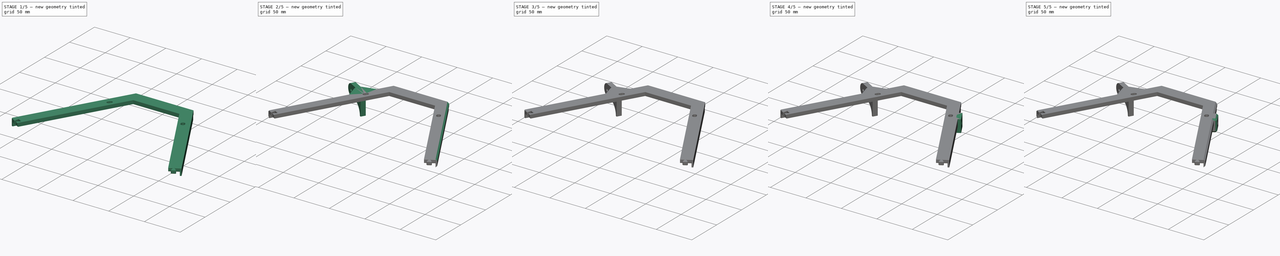
[diagram: build sequence overview — one tinted view per stage of 5, left to right]
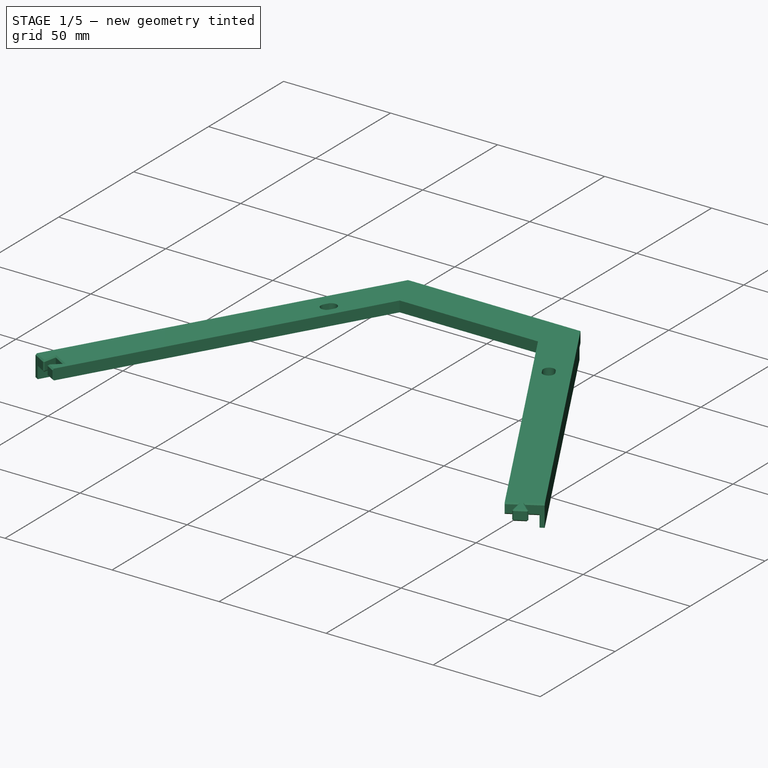
[diagram: stage 1 of 5 — iso view after this stage's code; geometry added in this stage tinted green]
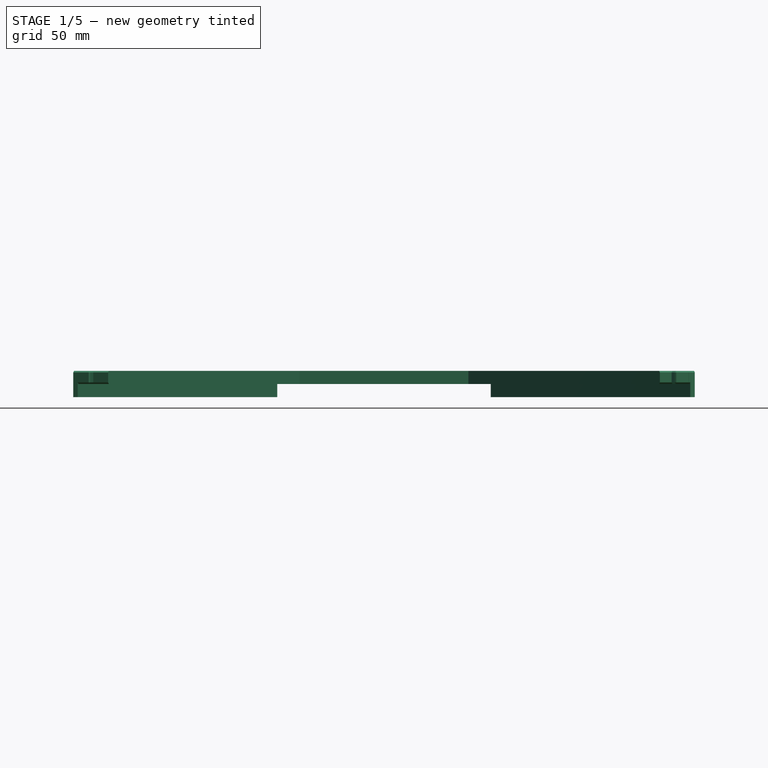
[diagram: stage 1 of 5 — front view after this stage's code; geometry added in this stage tinted green]
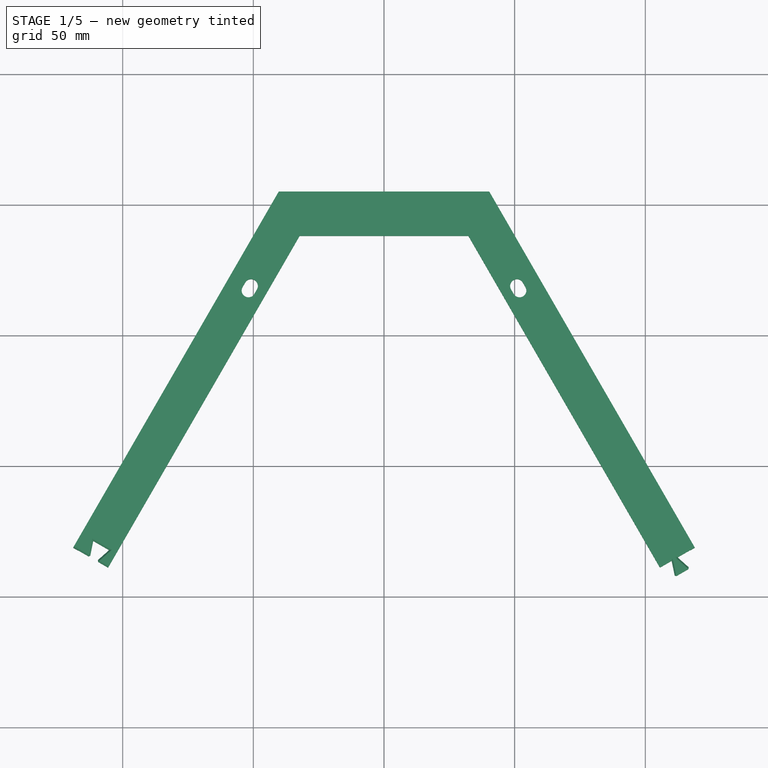
[diagram: stage 1 of 5 — top view after this stage's code; geometry added in this stage tinted green]
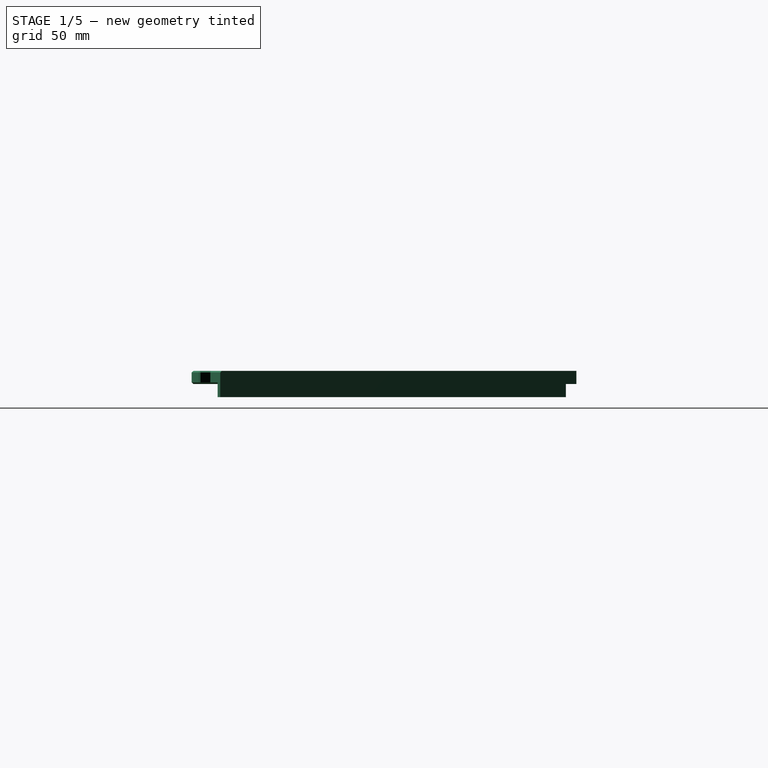
[diagram: stage 1 of 5 — right view after this stage's code; geometry added in this stage tinted green]
FCSTD DOCUMENT  (FreeCAD 0.19R24366 (Git))
Label: TopCover2
License: All rights reserved
LicenseURL: http://en.wikipedia.org/wiki/All_rights_reserved
objects: Sketcher::SketchObject×8, PartDesign::Body×7, PartDesign::Chamfer×5, PartDesign::FeatureBase×5, PartDesign::Pad×4, PartDesign::ShapeBinder×3, PartDesign::Pocket×3, PartDesign::Plane×2, App::Part×2, PartDesign::Fillet×1
note: 51 computed .brp shape members not serialized (recipe doc carries the construction recipe); baked Part::Feature solids carry a one-line shape summary decoded from their .brp

FEATURE [Sketcher::SketchObject] Sketch  label="SR_TopTemplate"
  FullyConstrained = true
  MapMode = 5
  Support = -> [XY_Plane001]
  sketch-geometry (47):
    g0: LineSegment StartX=-233.799 StartY=-134.984 StartZ=0 EndX=0 EndY=269.968 EndZ=0
    g1: LineSegment StartX=0 StartY=269.968 StartZ=0 EndX=233.799 EndY=-134.984 EndZ=0
    g2: LineSegment StartX=233.799 StartY=-134.984 StartZ=0 EndX=-233.799 EndY=-134.984 EndZ=0
    g3: LineSegment StartX=-196.299 StartY=-70.0321 StartZ=0 EndX=-158.799 EndY=-134.984 EndZ=0
    g4: LineSegment StartX=158.799 StartY=-134.984 StartZ=0 EndX=196.299 EndY=-70.0321 EndZ=0
    g5: LineSegment StartX=-37.5 StartY=205.016 StartZ=0 EndX=37.5 EndY=205.016 EndZ=0
    g6: LineSegment StartX=-233.799 StartY=-134.984 StartZ=0 EndX=116.9 EndY=67.492 EndZ=0
    g7: LineSegment StartX=0 StartY=269.968 StartZ=0 EndX=0 EndY=-134.984 EndZ=0
    g8: LineSegment StartX=233.799 StartY=-134.984 StartZ=0 EndX=-116.9 EndY=67.492 EndZ=0
    g9: GeomPoint X=0 Y=205.016 Z=0
    g10: LineSegment StartX=0 StartY=243.968 StartZ=0 EndX=-211.282 EndY=-121.984 EndZ=0
    g11: LineSegment StartX=-211.282 StartY=-121.984 StartZ=0 EndX=211.282 EndY=-121.984 EndZ=0
    g12: LineSegment StartX=211.282 StartY=-121.984 StartZ=0 EndX=0 EndY=243.968 EndZ=0
    g13: LineSegment StartX=-211.282 StartY=-121.984 StartZ=0 EndX=-222.541 EndY=-115.484 EndZ=0
    g14: LineSegment StartX=0 StartY=256.968 StartZ=0 EndX=-222.541 EndY=-128.484 EndZ=0
    g15: LineSegment StartX=-222.541 StartY=-128.484 StartZ=0 EndX=222.541 EndY=-128.484 EndZ=0
    g16: LineSegment StartX=222.541 StartY=-128.484 StartZ=0 EndX=0 EndY=256.968 EndZ=0
    g17: GeomPoint X=0 Y=0 Z=0
    g18: LineSegment StartX=-116.85 StartY=67.5786 StartZ=0 EndX=-105.591 EndY=61.0786 EndZ=0
    g19: LineSegment StartX=105.591 StartY=61.0786 StartZ=0 EndX=116.85 EndY=67.5786 EndZ=0
    g20: LineSegment StartX=-40.5 StartY=199.82 StartZ=0 EndX=-40.8464 EndY=200.02 EndZ=0
    g21: LineSegment StartX=-40.8464 StartY=200.02 StartZ=0 EndX=-193.646 EndY=-64.6359 EndZ=0
    g22: LineSegment StartX=-193.646 StartY=-64.6359 StartZ=0 EndX=-193.299 EndY=-64.8359 EndZ=0
    g23: LineSegment StartX=40.5 StartY=199.82 StartZ=0 EndX=40.8464 EndY=200.02 EndZ=0
    g24: LineSegment StartX=40.8464 StartY=200.02 StartZ=0 EndX=193.646 EndY=-64.6359 EndZ=0
    g25: LineSegment StartX=193.646 StartY=-64.6359 StartZ=0 EndX=193.299 EndY=-64.8359 EndZ=0
    g26: LineSegment StartX=-40.8464 StartY=200.02 StartZ=0 EndX=-42.5785 EndY=201.02 EndZ=0
    g27: LineSegment StartX=-42.5785 StartY=201.02 StartZ=0 EndX=-195.378 EndY=-63.6359 EndZ=0
    g28: LineSegment StartX=-195.378 StartY=-63.6359 StartZ=0 EndX=-193.646 EndY=-64.6359 EndZ=0
    g29: LineSegment StartX=40.8464 StartY=200.02 StartZ=0 EndX=42.5785 EndY=201.02 EndZ=0
    g30: LineSegment StartX=42.5785 StartY=201.02 StartZ=0 EndX=195.378 EndY=-63.6359 EndZ=0
    g31: LineSegment StartX=195.378 StartY=-63.6359 StartZ=0 EndX=193.646 EndY=-64.6359 EndZ=0
    g32: LineSegment StartX=-42.5785 StartY=201.02 StartZ=0 EndX=-40.2713 EndY=205.016 EndZ=0
    g33: LineSegment StartX=-40.2713 StartY=205.016 StartZ=0 EndX=-37.5 EndY=205.016 EndZ=0
    g34: LineSegment StartX=37.5 StartY=205.016 StartZ=0 EndX=40.2713 EndY=205.016 EndZ=0
    g35: LineSegment StartX=40.2713 StartY=205.016 StartZ=0 EndX=42.5785 EndY=201.02 EndZ=0
    g36: Circle CenterX=-171.17 CenterY=-39.5071 CenterZ=0 NormalX=0 NormalY=0 NormalZ=1 AngleXU=0 Radius=2.6
    g37: Circle CenterX=-51.3708 CenterY=167.991 CenterZ=0 NormalX=0 NormalY=0 NormalZ=1 AngleXU=0 Radius=2.6
    g38: Circle CenterX=51.3708 CenterY=167.991 CenterZ=0 NormalX=0 NormalY=0 NormalZ=1 AngleXU=0 Radius=2.6
    g39: Circle CenterX=171.17 CenterY=-39.5071 CenterZ=0 NormalX=0 NormalY=0 NormalZ=1 AngleXU=0 Radius=2.6
    g40: Circle CenterX=119.799 CenterY=-128.484 CenterZ=0 NormalX=0 NormalY=0 NormalZ=1 AngleXU=0 Radius=2.6
    g41: Circle CenterX=-119.799 CenterY=-128.484 CenterZ=0 NormalX=0 NormalY=0 NormalZ=1 AngleXU=0 Radius=2.6
    g42: LineSegment StartX=-51.3708 StartY=167.991 StartZ=0 EndX=-57 EndY=171.241 EndZ=0
    g43: LineSegment StartX=-39.8094 StartY=201.016 StartZ=0 EndX=39.8094 EndY=201.016 EndZ=0
    g44: LineSegment StartX=47.315 StartY=188.016 StartZ=0 EndX=-47.315 EndY=188.016 EndZ=0
    g45: LineSegment StartX=37.5 StartY=205.016 StartZ=0 EndX=37.5 EndY=201.016 EndZ=0
    g46: LineSegment StartX=39.8094 StartY=201.016 StartZ=0 EndX=39.8094 EndY=188.016 EndZ=0
  constraints (135):
    c: Coincident(g0,g1)
    c: Coincident(g1,g2)
    c: Coincident(g2,g0)
    c: Equal(g0,g1)
    c: Equal(g1,g2)
    c: PointOnObject(g3,g0)
    c: PointOnObject(g4,g2)
    c: PointOnObject(g4,g1)
    c: PointOnObject(g5,g0)
    c: PointOnObject(g5,g1)
    c: Parallel(g5,g2)
    c: Parallel(g4,g0)
    c: Equal(g3,g4)
    c: Equal(g4,g5)
    c: PointOnObject(g3,g2)
    c: Parallel(g3,g1)
    c: Distance(g3) = 75
    c: Coincident(g6,g0)
    c: PointOnObject(g6,g1)
    c: Coincident(g7,g0)
    c: PointOnObject(g7,g2)
    c: Coincident(g8,g1)
    c: PointOnObject(g8,g0)
    c: Perpendicular(g0,g8)
    c: Perpendicular(g2,g7)
    c: Perpendicular(g1,g6)
    c: PointOnObject(g9,g5)
    c: PointOnObject(g9,g7)
    c: Distance(g9,g7) = 340
    c: PointOnObject(g10,g7)
    c: PointOnObject(g10,g6)
    c: Coincident(g10,g11)
    c: PointOnObject(g11,g8)
    c: Coincident(g11,g12)
    c: Coincident(g12,g10)
    c: Equal(g10,g12)
    c: Equal(g12,g11)
    c: Coincident(g13,g10)
    c: PointOnObject(g13,g0)
    c: Perpendicular(g0,g13)
    c: Distance(g13) = 13
    c: PointOnObject(g14,g6)
    c: Coincident(g14,g15)
    c: PointOnObject(g15,g8)
    c: Coincident(g15,g16)
    c: Coincident(g16,g14)
    c: Symmetric(g10,g0,g14)
    c: Equal(g14,g16)
    c: Equal(g16,g15)
    c: PointOnObject(g17,g8)
    c: PointOnObject(g17,g7)
    c: PointOnObject(g18,g0)
    c: PointOnObject(g18,g10)
    c: PointOnObject(g19,g1)
    c: Symmetric(g19,g18,g7)
    c: Parallel(g18,g8)
    c: PointOnObject(g20,g0)
    c: Coincident(g20,g21)
    c: Coincident(g21,g22)
    c: Perpendicular(g0,g22)
    c: Equal(g22,g20)
    c: Perpendicular(g0,g20)
    c: Distance(g20,g5) = 6
    c: Coincident(g23,g24)
    c: Coincident(g24,g25)
    c: PointOnObject(g25,g1)
    c: Perpendicular(g1,g25)
    c: Equal(g25,g23)
    c: Equal(g23,g20)
    c: Perpendicular(g1,g23)
    c: Coincident(g20,g26)
    c: Coincident(g26,g27)
    c: Coincident(g27,g28)
    c: Coincident(g28,g21)
    c: Perpendicular(g0,g28)
    c: Equal(g28,g26)
    c: Perpendicular(g0,g26)
    c: Coincident(g23,g29)
    c: Coincident(g29,g30)
    c: Coincident(g30,g31)
    c: Coincident(g31,g24)
    c: Perpendicular(g1,g31)
    c: Equal(g31,g29)
    c: Equal(g29,g26)
    c: Perpendicular(g1,g29)
    c: Symmetric(g20,g23,g7)
    c: Equal(g24,g21)
    c: Distance(g20,g20) = 0.4
    c: Distance(g26) = 2
    c: Symmetric(g22,g20,g8)
    c: Parallel(g19,g6)
    c: Coincident(g26,g32)
    c: Coincident(g32,g33)
    c: Coincident(g33,g5)
    c: PointOnObject(g32,g5)
    c: PointOnObject(g32,g27)
    c: Coincident(g34,g5)
    c: Coincident(g35,g34)
    c: Coincident(g35,g29)
    c: PointOnObject(g34,g30)
    c: PointOnObject(g34,g5)
    c: PointOnObject(g36,g14)
    c: Equal(g36,g37)
    c: Equal(g37,g38)
    c: Equal(g38,g39)
    c: Equal(g39,g40)
    c: Equal(g40,g41)
    c: Symmetric(g37,g36,g8)
    c: Symmetric(g36,g41,g6)
    c: Symmetric(g41,g40,g7)
    c: Symmetric(g40,g39,g8)
    c: Symmetric(g39,g38,g6)
    c: Coincident(g42,g37)
    c: PointOnObject(g42,g0)
    c: Perpendicular(g0,g42)
    c: Distance(g42,g5) = 39
    c: Radius(g37) = 2.6
    c: PointOnObject(g43,g0)
    c: PointOnObject(g43,g1)
    c: PointOnObject(g44,g1)
    c: PointOnObject(g44,g0)
    c: Parallel(g44,g43)
    c: Parallel(g43,g5)
    c: Coincident(g45,g5)
    c: PointOnObject(g45,g43)
    c: Coincident(g46,g43)
    c: PointOnObject(g46,g44)
    c: Equal(g46,g13)
    c: Perpendicular(g44,g46)
    c: Perpendicular(g43,g45)
    c: Distance(g45) = 4
    c: Coincident(g17,g-1)  '__ANCHOR1_'
    c: Horizontal(g2)  '__ANCHOR2__'
    c: Distance(g8,g18) = 0.1
    c: Distance(g8,g42) = 119.799  'ScrewFromMiddle'
FEATURE [PartDesign::Body] Body  label="SR_TopTemplate_"
  Group = -> [Sketch]
  Origin = -> Origin001
FEATURE [PartDesign::ShapeBinder] ShapeBinder
  Support = -> [Sketch]
  TraceSupport = false
FEATURE [Sketcher::SketchObject] Sketch001  label="SRTF_Base"
  ExternalGeometry = -> [ShapeBinder]
  FullyConstrained = true
  MapMode = 5
  Support = -> [XY_Plane002]
  sketch-geometry (40):
    g0: LineSegment StartX=-40.2713 StartY=205.016 StartZ=0 EndX=40.2713 EndY=205.016 EndZ=0
    g1: LineSegment StartX=40.2713 StartY=205.016 StartZ=0 EndX=118.928 EndY=68.7786 EndZ=0
    g2: LineSegment StartX=105.591 StartY=61.0786 StartZ=0 EndX=32.3038 EndY=188.016 EndZ=0
    g3: LineSegment StartX=32.3038 StartY=188.016 StartZ=0 EndX=-32.3038 EndY=188.016 EndZ=0
    g4: LineSegment StartX=-32.3038 StartY=188.016 StartZ=0 EndX=-105.591 EndY=61.0786 EndZ=0
    g5: LineSegment StartX=-118.928 StartY=68.7786 StartZ=0 EndX=-40.2713 EndY=205.016 EndZ=0
    g6: LineSegment StartX=-118.928 StartY=68.7786 StartZ=0 EndX=-116.85 EndY=67.5786 EndZ=0
    g7: LineSegment StartX=-116.85 StartY=67.5786 StartZ=0 EndX=-112.519 EndY=65.0786 EndZ=0
    g8: LineSegment StartX=-112.519 StartY=65.0786 StartZ=0 EndX=-109.921 EndY=63.5786 EndZ=0
    g9: LineSegment StartX=-109.921 StartY=63.5786 StartZ=0 EndX=-105.591 EndY=61.0786 EndZ=0
    g10: LineSegment StartX=-112.519 StartY=65.0786 StartZ=0 EndX=-111.251 EndY=71.2747 EndZ=0
    g11: LineSegment StartX=-111.251 StartY=71.2747 StartZ=0 EndX=-105.189 EndY=67.7747 EndZ=0
    g12: LineSegment StartX=-105.189 StartY=67.7747 StartZ=0 EndX=-109.921 EndY=63.5786 EndZ=0
    g13: LineSegment StartX=-111.251 StartY=71.2747 StartZ=0 EndX=-115.928 EndY=73.9747 EndZ=0
    g14: LineSegment StartX=118.928 StartY=68.7786 StartZ=0 EndX=116.85 EndY=67.5786 EndZ=0
    g15: LineSegment StartX=116.85 StartY=67.5786 StartZ=0 EndX=112.519 EndY=65.0786 EndZ=0
    g16: LineSegment StartX=112.519 StartY=65.0786 StartZ=0 EndX=109.921 EndY=63.5786 EndZ=0
    g17: LineSegment StartX=109.921 StartY=63.5786 StartZ=0 EndX=105.591 EndY=61.0786 EndZ=0
    g18: LineSegment StartX=109.921 StartY=63.5786 StartZ=0 EndX=109.971 EndY=63.492 EndZ=0
    g19: LineSegment StartX=109.971 StartY=63.492 StartZ=0 EndX=111.239 EndY=57.2958 EndZ=0
    g20: LineSegment StartX=111.239 StartY=57.2958 StartZ=0 EndX=117.301 EndY=60.7958 EndZ=0
    g21: LineSegment StartX=117.301 StartY=60.7958 StartZ=0 EndX=112.569 EndY=64.992 EndZ=0
    g22: LineSegment StartX=112.569 StartY=64.992 StartZ=0 EndX=112.519 EndY=65.0786 EndZ=0
    g23: LineSegment StartX=109.921 StartY=63.5786 StartZ=0 EndX=110.051 EndY=63.6536 EndZ=0
    g24: LineSegment StartX=110.051 StartY=63.6536 StartZ=0 EndX=110.101 EndY=63.567 EndZ=0
    g25: LineSegment StartX=110.101 StartY=63.567 StartZ=0 EndX=111.337 EndY=57.5282 EndZ=0
    g26: LineSegment StartX=111.337 StartY=57.5282 StartZ=0 EndX=117.046 EndY=60.8217 EndZ=0
    g27: LineSegment StartX=117.046 StartY=60.8217 StartZ=0 EndX=112.44 EndY=64.917 EndZ=0
    g28: LineSegment StartX=112.44 StartY=64.917 StartZ=0 EndX=112.39 EndY=65.0036 EndZ=0
    g29: LineSegment StartX=112.39 StartY=65.0036 StartZ=0 EndX=112.519 EndY=65.0786 EndZ=0
    g30: LineSegment StartX=117.121 StartY=60.6918 StartZ=0 EndX=117.046 EndY=60.8217 EndZ=0
    g31: LineSegment StartX=117.046 StartY=60.8217 StartZ=0 EndX=117.146 EndY=60.9339 EndZ=0
    g32: ArcOfCircle CenterX=-51.8708 CenterY=167.125 CenterZ=0 NormalX=0 NormalY=0 NormalZ=1 AngleXU=0 Radius=2.6 StartAngle=2.61799 EndAngle=5.75959
    g33: ArcOfCircle CenterX=-50.8708 CenterY=168.857 CenterZ=0 NormalX=0 NormalY=0 NormalZ=1 AngleXU=0 Radius=2.6 StartAngle=5.75959 EndAngle=8.90118
    g34: LineSegment StartX=-49.6192 StartY=165.825 StartZ=0 EndX=-48.6192 EndY=167.557 EndZ=0
    g35: LineSegment StartX=-54.1225 StartY=168.425 StartZ=0 EndX=-53.1225 EndY=170.157 EndZ=0
    g36: ArcOfCircle CenterX=50.8708 CenterY=168.857 CenterZ=0 NormalX=0 NormalY=0 NormalZ=1 AngleXU=0 Radius=2.6 StartAngle=0.523599 EndAngle=3.66519
    g37: ArcOfCircle CenterX=51.8708 CenterY=167.125 CenterZ=0 NormalX=0 NormalY=0 NormalZ=1 AngleXU=0 Radius=2.6 StartAngle=3.66519 EndAngle=6.80678
    g38: LineSegment StartX=48.6192 StartY=167.557 StartZ=0 EndX=49.6192 EndY=165.825 EndZ=0
    g39: LineSegment StartX=53.1225 StartY=170.157 StartZ=0 EndX=54.1225 EndY=168.425 EndZ=0
  constraints (107):
    c: Coincident(g0,g1)
    c: PointOnObject(g2,g-6)
    c: Coincident(g2,g3)
    c: PointOnObject(g3,g-5)
    c: Coincident(g3,g4)
    c: Coincident(g4,g-9)
    c: Coincident(g5,g0)
    c: PointOnObject(g-3,g0)
    c: PointOnObject(g-3,g0)
    c: PointOnObject(g-4,g3)
    c: PointOnObject(g-4,g3)
    c: Coincident(g6,g-9)
    c: Parallel(g6,g-9)
    c: Coincident(g6,g7)
    c: PointOnObject(g7,g-9)
    c: Coincident(g7,g8)
    c: PointOnObject(g8,g-9)
    c: Coincident(g8,g9)
    c: Coincident(g9,g4)
    c: Equal(g7,g9)
    c: Distance(g8) = 3
    c: Coincident(g7,g10)
    c: Coincident(g11,g12)
    c: Coincident(g12,g9)
    c: Equal(g10,g12)
    c: PointOnObject(g13,g5)
    c: Distance(g5,g13) = 6
    c: Distance(g11) = 7
    c: Coincident(g14,g1)
    c: Coincident(g14,g-11)
    c: Coincident(g15,g14)
    c: PointOnObject(g15,g-11)
    c: Coincident(g16,g15)
    c: PointOnObject(g16,g-11)
    c: Coincident(g17,g16)
    c: Coincident(g17,g2)
    c: Equal(g15,g17)
    c: Equal(g17,g9)
    c: Coincident(g2,g-11)
    c: Parallel(g14,g15)
    c: Coincident(g17,g18)
    c: PointOnObject(g18,g-12)
    c: Coincident(g18,g19)
    c: Coincident(g19,g20)
    c: Coincident(g21,g20)
    c: PointOnObject(g21,g-12)
    c: Coincident(g22,g21)
    c: Coincident(g22,g15)
    c: Parallel(g20,g-12)
    c: Equal(g21,g19)
    c: Equal(g19,g12)
    c: Perpendicular(g17,g18)
    c: Perpendicular(g15,g22)
    c: Equal(g20,g11)
    c: Coincident(g17,g23)
    c: PointOnObject(g23,g16)
    c: Coincident(g23,g24)
    c: PointOnObject(g24,g-12)
    c: Coincident(g24,g25)
    c: Coincident(g25,g26)
    c: Coincident(g26,g27)
    c: PointOnObject(g27,g-12)
    c: Coincident(g27,g28)
    c: PointOnObject(g28,g-11)
    c: Coincident(g28,g29)
    c: Coincident(g29,g15)
    c: Equal(g23,g29)
    c: Distance(g23) = 0.15
    c: Perpendicular(g-12,g24)
    c: Perpendicular(g-12,g28)
    c: PointOnObject(g30,g20)
    c: Coincident(g30,g26)
    c: Coincident(g30,g31)
    c: PointOnObject(g31,g21)
    c: Perpendicular(g21,g31)
    c: Perpendicular(g20,g30)
    c: Equal(g30,g31)
    c: Equal(g31,g29)
    c: Equal(g25,g27)
    c: Parallel(g25,g19)
    c: Tangent(g32,g35) = 1.5708
    c: Tangent(g32,g34) = -1.5708
    c: Tangent(g34,g33) = -1.5708
    c: Tangent(g35,g33) = 1.5708
    c: Equal(g32,g33)
    c: Tangent(g36,g39) = 1.5708
    c: Tangent(g36,g38) = -1.5708
    c: Tangent(g38,g37) = -1.5708
    c: Tangent(g39,g37) = 1.5708
    c: Equal(g36,g37)
    c: Equal(g36,g-7)
    c: Equal(g33,g-8)
    c: Symmetric(g37,g36,g-7)
    c: Symmetric(g32,g33,g-8)
    c: Parallel(g34,g-5)
    c: Parallel(g39,g-6)
    c: Distance(g35) = 2
    c: Equal(g34,g38)
    c: Coincident(g5,g6)
    c: PointOnObject(g5,g-13)
    c: PointOnObject(g-13,g5)
    c: PointOnObject(g-14,g1)
    c: PointOnObject(g1,g-14)
    c: Parallel(g13,g-15)
    c: Coincident(g10,g11)
    c: Coincident(g10,g13)
    c: Parallel(g11,g13)
FEATURE [PartDesign::Pad] Pad  label="SRTF_Base_"
  Direction = (1,1,1)
  Length = 5
  Length2 = 100
  Profile = -> Sketch001
  Refine = true
  Type = 0
FEATURE [Sketcher::SketchObject] Sketch002  label="SRTF_Flange"
  ExternalGeometry = -> [ShapeBinder]
  FullyConstrained = true
  MapMode = 5
  Support = -> [XY_Plane002]
  sketch-geometry (8):
    g0: LineSegment StartX=-42.5785 StartY=201.02 StartZ=0 EndX=-40.8464 EndY=200.02 EndZ=0
    g1: LineSegment StartX=-40.8464 StartY=200.02 StartZ=0 EndX=-117.196 EndY=67.7786 EndZ=0
    g2: LineSegment StartX=-117.196 StartY=67.7786 StartZ=0 EndX=-118.928 EndY=68.7786 EndZ=0
    g3: LineSegment StartX=-118.928 StartY=68.7786 StartZ=0 EndX=-42.5785 EndY=201.02 EndZ=0
    g4: LineSegment StartX=117.196 StartY=67.7786 StartZ=0 EndX=118.928 EndY=68.7786 EndZ=0
    g5: LineSegment StartX=118.928 StartY=68.7786 StartZ=0 EndX=42.5785 EndY=201.02 EndZ=0
    g6: LineSegment StartX=42.5785 StartY=201.02 StartZ=0 EndX=40.8464 EndY=200.02 EndZ=0
    g7: LineSegment StartX=40.8464 StartY=200.02 StartZ=0 EndX=117.196 EndY=67.7786 EndZ=0
  constraints (20):
    c: Coincident(g1,g2)
    c: Coincident(g2,g3)
    c: Coincident(g3,g0)
    c: Coincident(g1,g0)
    c: Coincident(g1,g-4)
    c: Coincident(g0,g-5)
    c: PointOnObject(g1,g-4)
    c: PointOnObject(g2,g-5)
    c: PointOnObject(g2,g-3)
    c: PointOnObject(g1,g-3)
    c: PointOnObject(g4,g-7)
    c: PointOnObject(g4,g-8)
    c: Coincident(g4,g5)
    c: Coincident(g5,g-8)
    c: Coincident(g5,g6)
    c: Coincident(g6,g-7)
    c: Coincident(g6,g7)
    c: Coincident(g7,g4)
    c: PointOnObject(g4,g-6)
    c: PointOnObject(g4,g-6)
FEATURE [PartDesign::Pad] Pad001  label="SRTF_Flange_"
  BaseFeature = -> Pad
  Direction = (1,1,1)
  Length = 5
  Length2 = 5
  Profile = -> Sketch002
  Refine = true
  Reversed = true
  Type = 0
FEATURE [PartDesign::Chamfer] Chamfer001  label="SRTF_LockChamfer"
  Angle = 45
  Base = -> Pad001 [Edge50,Edge49,Edge8,Edge9,Edge10,Edge7,Edge11,Edge48,Edge19,Edge40,Edge41,Edge18,Edge39,Edge20,Edge37,Edge15,Edge17,Edge42,Edge21,Edge38,Edge46,Edge47,Edge69,Edge59,Edge76,Edge77,Edge36,Edge16]
  BaseFeature = -> Pad001
  ChamferType = 0
  FlipDirection = false
  Size = 0.6
  Size2 = 1
  SupportTransform = false
FEATURE [PartDesign::ShapeBinder] ShapeBinder002
  Support = -> [Sketch]
  TraceSupport = false
FEATURE [Sketcher::SketchObject] Sketch004  label="SRTFFL_CableHole"
  AttachmentOffset = pos=(0,0,5) rot=(0,0,1;0rad)
  ExternalGeometry = -> [ShapeBinder002]
  FullyConstrained = true
  MapMode = 5
  Placement = pos=(0,0,5) rot=(0,0,1;0rad)
  Support = -> [XY_Plane004]
  expr: .AttachmentOffset.Base.z = <<SRTF_Base_>>.Length
  sketch-geometry (5):
    g0: LineSegment StartX=-69.0785 StartY=155.121 StartZ=0 EndX=-55.7417 EndY=147.421 EndZ=0
    g1: LineSegment StartX=-55.7417 StartY=147.421 StartZ=0 EndX=-62.7417 EndY=135.296 EndZ=0
    g2: LineSegment StartX=-62.7417 StartY=135.296 StartZ=0 EndX=-76.0785 EndY=142.996 EndZ=0
    g3: LineSegment StartX=-76.0785 StartY=142.996 StartZ=0 EndX=-69.0785 EndY=155.121 EndZ=0
    g4: LineSegment StartX=-51.3708 StartY=167.991 StartZ=0 EndX=-45.7417 EndY=164.741 EndZ=0
  constraints (15):
    c: PointOnObject(g0,g-3)
    c: PointOnObject(g0,g-4)
    c: Coincident(g0,g1)
    c: PointOnObject(g1,g-4)
    c: Coincident(g1,g2)
    c: PointOnObject(g2,g-3)
    c: Coincident(g2,g3)
    c: Coincident(g3,g0)
    c: Perpendicular(g-3,g0)
    c: Perpendicular(g-3,g2)
    c: Distance(g1) = 14
    c: Coincident(g4,g-5)
    c: PointOnObject(g4,g-4)
    c: Perpendicular(g-4,g4)
    c: Distance(g0,g4) = 20
FEATURE [PartDesign::Plane] DatumPlane
  AttachmentOffset = pos=(0,0,-119.799) rot=(0,0,1;0rad)
  Length = 346.587
  MapMode = 45
  Placement = pos=(-57,171.241,-1.33e-14) rot=(0.935113,-0.250563,-0.250563;1.63783rad)
  ResizeMode = 0
  Support = -> [ShapeBinder002]
  Width = 76.5897
  expr: .AttachmentOffset.Base.z = -<<SR_TopTemplate>>.Constraints.ScrewFromMiddle
FEATURE [Sketcher::SketchObject] Sketch005  label="SRTFFL_DisplayHolder"
  ExternalGeometry = -> [Sketch004,ShapeBinder002]
  FullyConstrained = true
  MapMode = 5
  Placement = pos=(-57,171.241,-1.33e-14) rot=(0.935113,-0.250563,-0.250563;1.63783rad)
  Support = -> [DatumPlane]
  expr: Constraints[17] = .Constraints.CenterOffset - .Constraints.Radius - 1mm
  sketch-geometry (9):
    g0: LineSegment StartX=-0.4 StartY=5 StartZ=0 EndX=-26.4 EndY=5 EndZ=0
    g1: LineSegment StartX=-26.4 StartY=5 StartZ=0 EndX=-26.4 EndY=-11 EndZ=0
    g2: LineSegment StartX=-26.4 StartY=-11 StartZ=0 EndX=-17.4 EndY=-11 EndZ=0
    g3: LineSegment StartX=-0.4 StartY=-26 StartZ=0 EndX=-0.4 EndY=5 EndZ=0
    g4: ArcOfCircle CenterX=-26.4 CenterY=-3 CenterZ=0 NormalX=0 NormalY=0 NormalZ=1 AngleXU=0 Radius=8 StartAngle=1.5708 EndAngle=4.71239
    g5: Circle CenterX=-26.4 CenterY=-3 CenterZ=0 NormalX=0 NormalY=0 NormalZ=1 AngleXU=0 Radius=1.75
    g6: ArcOfCircle CenterX=-17.4 CenterY=-26 CenterZ=0 NormalX=0 NormalY=0 NormalZ=1 AngleXU=0 Radius=15 StartAngle=5.4352e-12 EndAngle=1.5708
    g7: LineSegment StartX=-2.4 StartY=5 StartZ=0 EndX=-2.4 EndY=-26 EndZ=0
    g8: LineSegment StartX=-2.4 StartY=-26 StartZ=0 EndX=-0.4 EndY=-26 EndZ=0
  constraints (24):
    c: Coincident(g0,g1)
    c: Coincident(g1,g2)
    c: Coincident(g3,g0)
    c: Horizontal(g0)
    c: Horizontal(g2)
    c: Vertical(g1)
    c: Vertical(g3)
    c: PointOnObject(g0,g-3)
    c: PointOnObject(g-4,g3)
    c: PointOnObject(g4,g1)
    c: Coincident(g4,g0)
    c: Coincident(g4,g2)
    c: Radius(g4) = 8  'Radius'
    c: Coincident(g5,g4)
    c: Radius(g5) = 1.75
    c: DistanceX(g0,g-3) = 24  'CenterOffset'
    c: Tangent(g2,g6) = 1.5708
    c: Radius(g6) = 15
    c: Vertical(g7)
    c: Tangent(g7,g6) = 1.5708
    c: Coincident(g7,g-3)
    c: Coincident(g8,g6)
    c: Coincident(g8,g3)
    c: Horizontal(g8)
FEATURE [PartDesign::FeatureBase] Clone001
  BaseFeature = -> Chamfer001
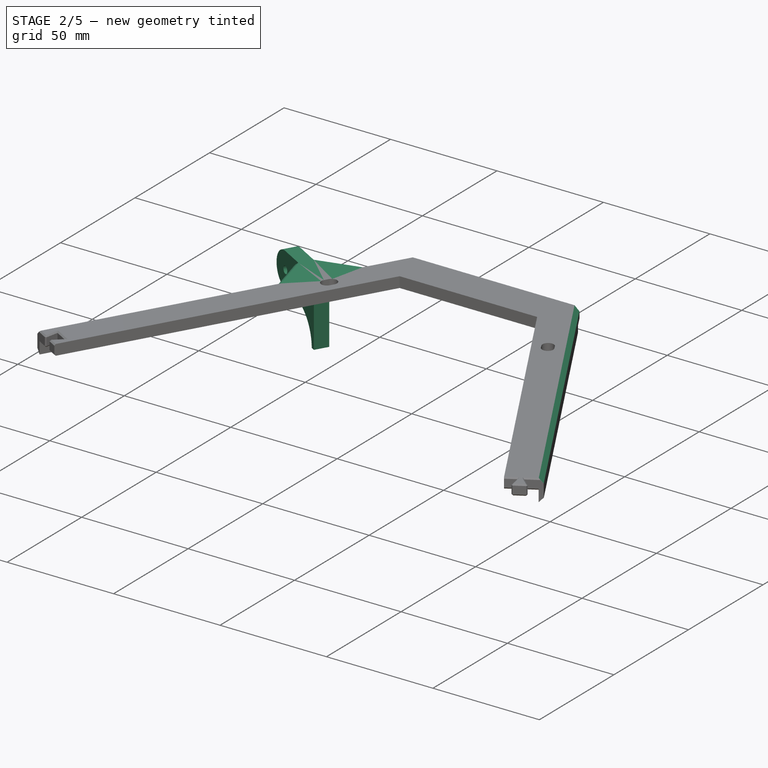
[diagram: stage 2 of 5 — iso view after this stage's code; geometry added in this stage tinted green]
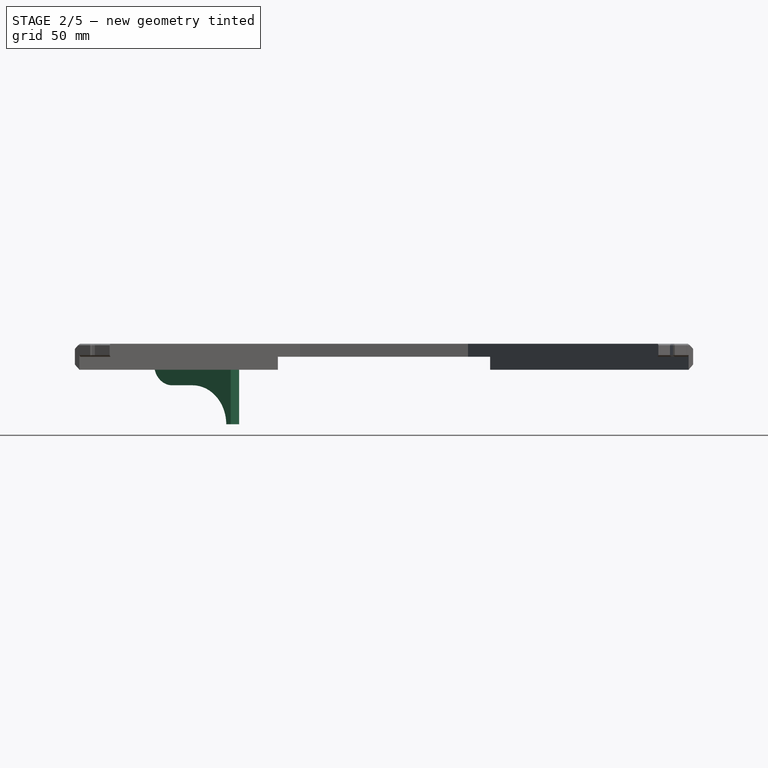
[diagram: stage 2 of 5 — front view after this stage's code; geometry added in this stage tinted green]
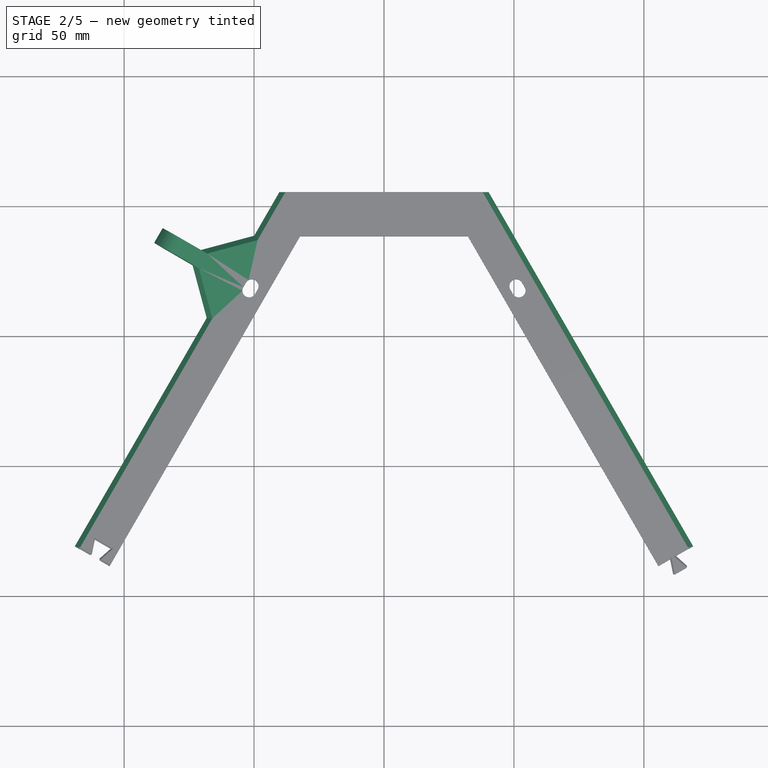
[diagram: stage 2 of 5 — top view after this stage's code; geometry added in this stage tinted green]
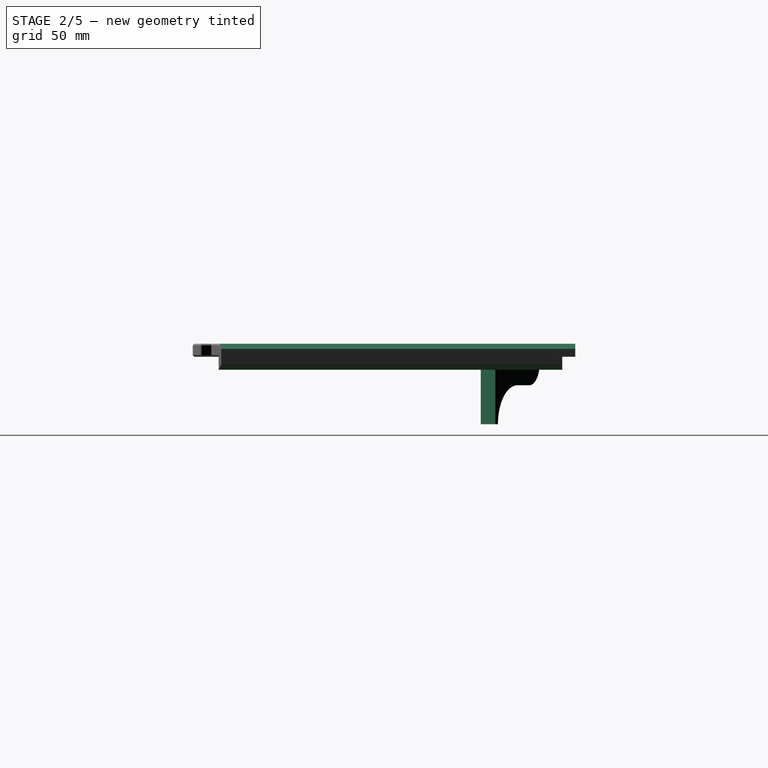
[diagram: stage 2 of 5 — right view after this stage's code; geometry added in this stage tinted green]
FEATURE [PartDesign::Pad] Pad002  label="SRTFFL_DisplayHolder_"
  BaseFeature = -> Clone001
  Direction = (1,1,1)
  Length = 6.5
  Length2 = 100
  Midplane = true
  Profile = -> Sketch005
  Refine = true
  Type = 0
FEATURE [PartDesign::Chamfer] Chamfer003
  Angle = 45
  Base = -> Pad002 [Edge40,Edge160]
  BaseFeature = -> Pad002
  ChamferType = 0
  FlipDirection = false
  Size = 15
  Size2 = 1
  SupportTransform = false
  expr: Size = <<SRTFFL_DisplayHolder>>.Constraints.CenterOffset - <<SRTFFL_DisplayHolder>>.Constraints.Radius - 1mm
FEATURE [PartDesign::Chamfer] Chamfer004
  Angle = 45
  Base = -> Chamfer003 [Edge25,Edge23,Edge7,Edge13,Edge1,Edge4,Edge3,Edge18,Edge103,Edge107,Edge88,Edge89]
  BaseFeature = -> Chamfer003
  ChamferType = 0
  FlipDirection = false
  Size = 1.99
  Size2 = 1
  SupportTransform = false
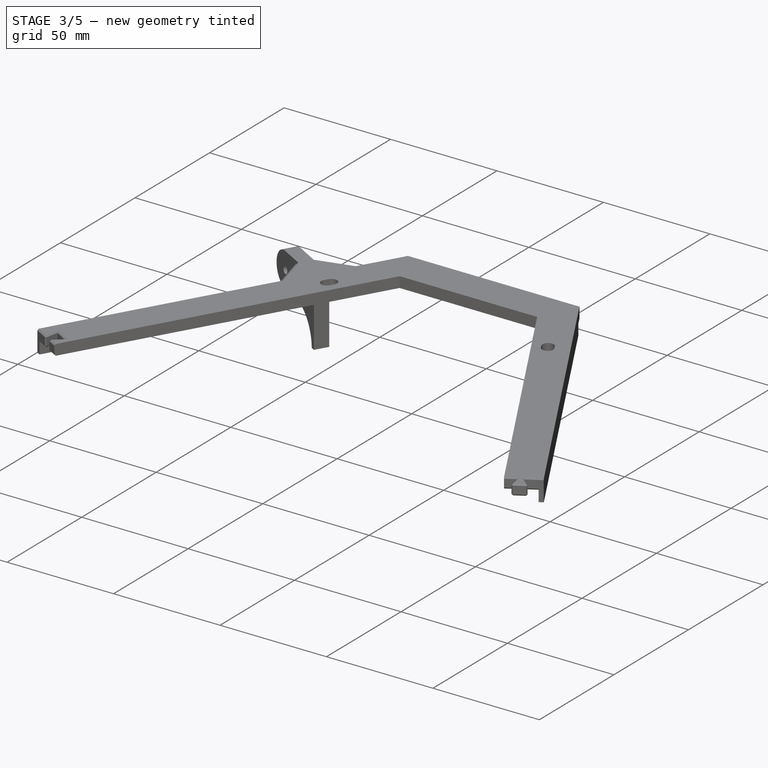
[diagram: stage 3 of 5 — iso view after this stage's code; geometry added in this stage tinted green]
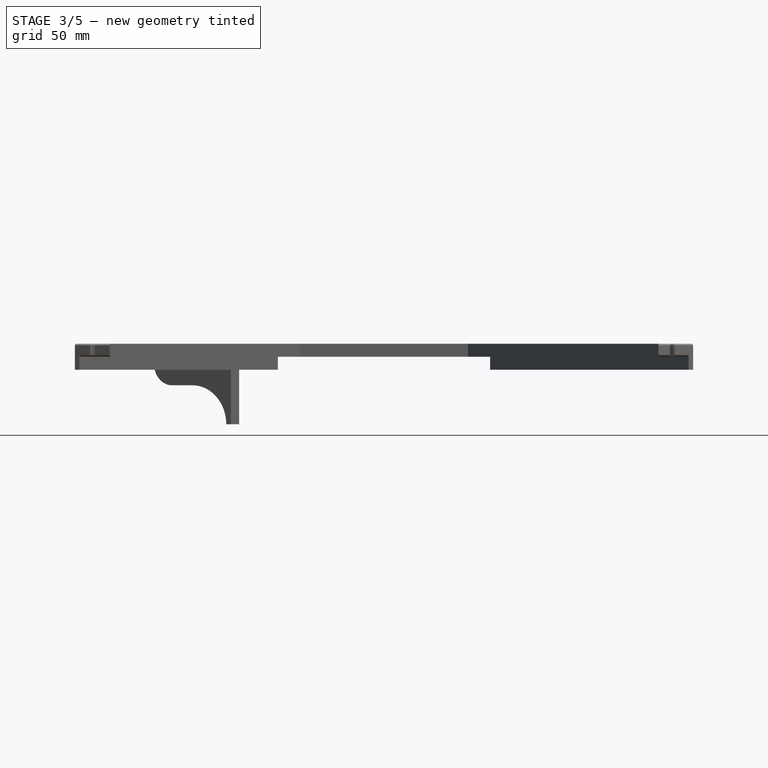
[diagram: stage 3 of 5 — front view after this stage's code; geometry added in this stage tinted green]
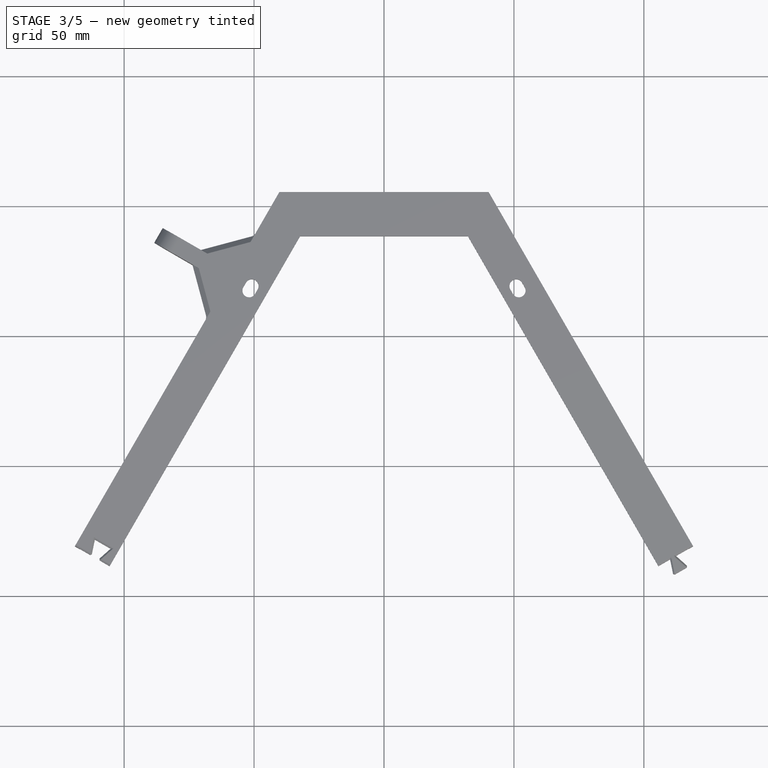
[diagram: stage 3 of 5 — top view after this stage's code; geometry added in this stage tinted green]
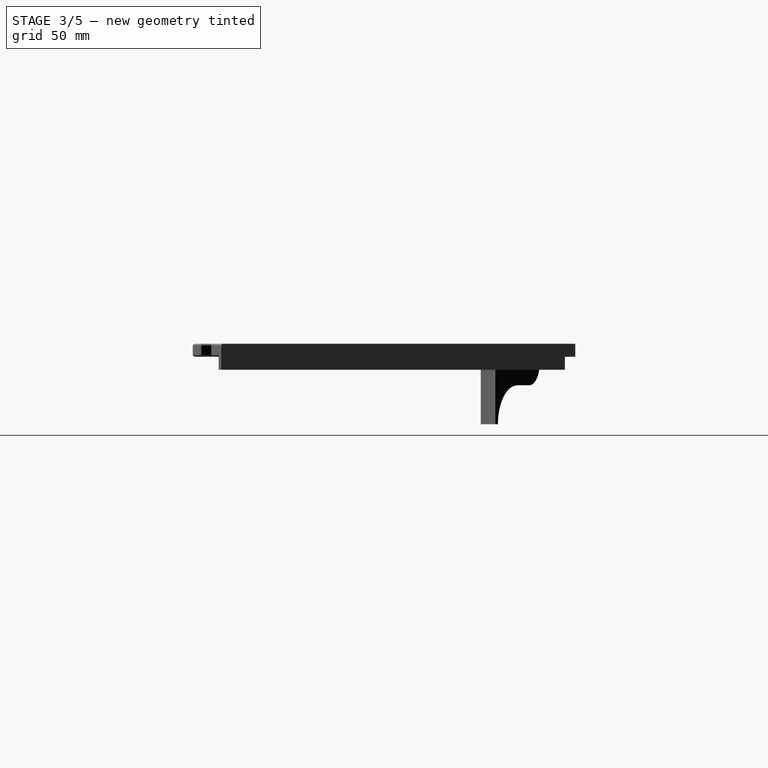
[diagram: stage 3 of 5 — right view after this stage's code; geometry added in this stage tinted green]
FEATURE [PartDesign::Body] Body001  label="SR_TopFrame_B"
  Group = -> [ShapeBinder,Sketch001,Pad,Sketch002,Pad001,Chamfer001,Chamfer]
  Origin = -> Origin002
  Tip = -> Chamfer
FEATURE [PartDesign::FeatureBase] Clone
  BaseFeature = -> Chamfer001
FEATURE [PartDesign::Fillet] Fillet
  Base = -> Chamfer004 [Edge1,Edge14,Edge11,Edge188,Edge233,Edge234]
  BaseFeature = -> Chamfer004
  Radius = 3
  SupportTransform = false
FEATURE [PartDesign::Pocket] Pocket001  label="SRTFFL_CableHole_"
  BaseFeature = -> Fillet
  Length = 2.5
  Length2 = 100
  Profile = -> Sketch004
  Type = 0
FEATURE [PartDesign::Body] Body005  label="SR_TopFrame_FR_Print"
  Group = -> [Clone003]
  Origin = -> Origin007
  Placement = pos=(0,0,0) rot=(0.866025,-0.5,0;3.14159rad)
  Tip = -> Clone003
FEATURE [PartDesign::FeatureBase] Clone004
  BaseFeature = -> Body003
FEATURE [PartDesign::Body] Body006  label="SR_TopFrame_FL_Print"
  Group = -> [Clone004]
  Origin = -> Origin008
  Placement = pos=(0,0,0) rot=(0.866025,0.5,0;3.14159rad)
  Tip = -> Clone004
FEATURE [App::Part] Part001
  Group = -> [Body004,Body005,Body006]
  Origin = -> Origin005
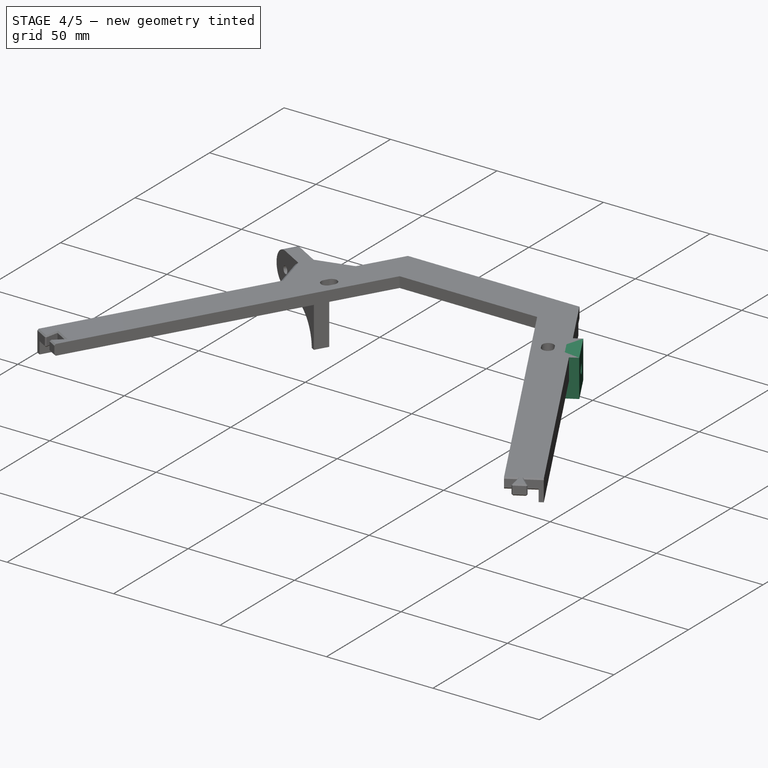
[diagram: stage 4 of 5 — iso view after this stage's code; geometry added in this stage tinted green]
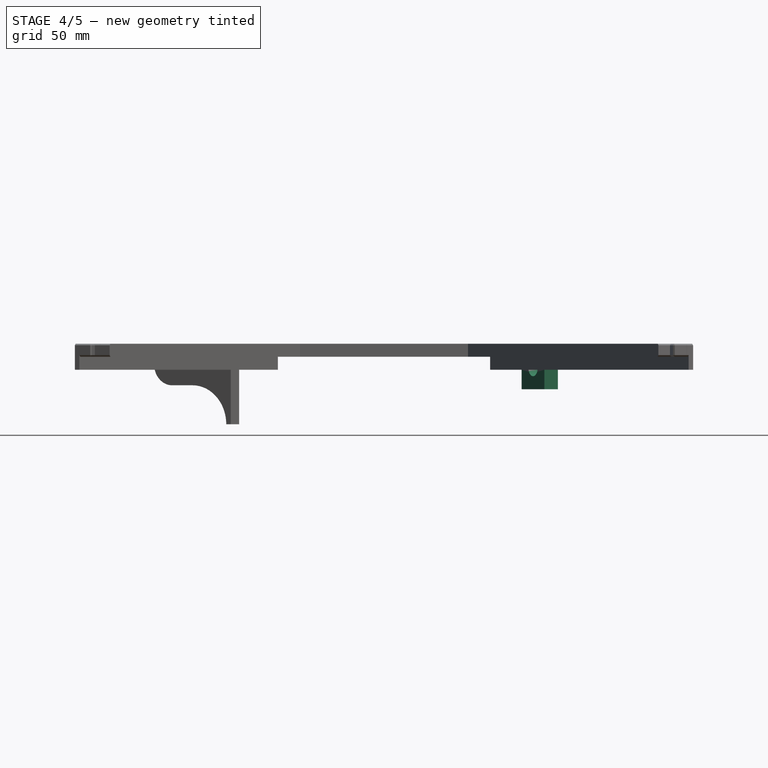
[diagram: stage 4 of 5 — front view after this stage's code; geometry added in this stage tinted green]
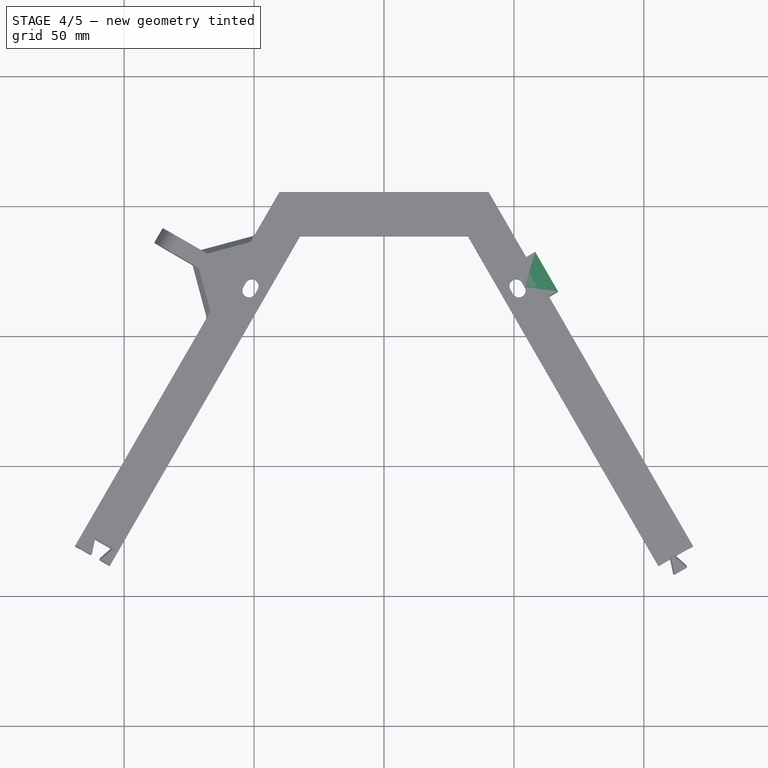
[diagram: stage 4 of 5 — top view after this stage's code; geometry added in this stage tinted green]
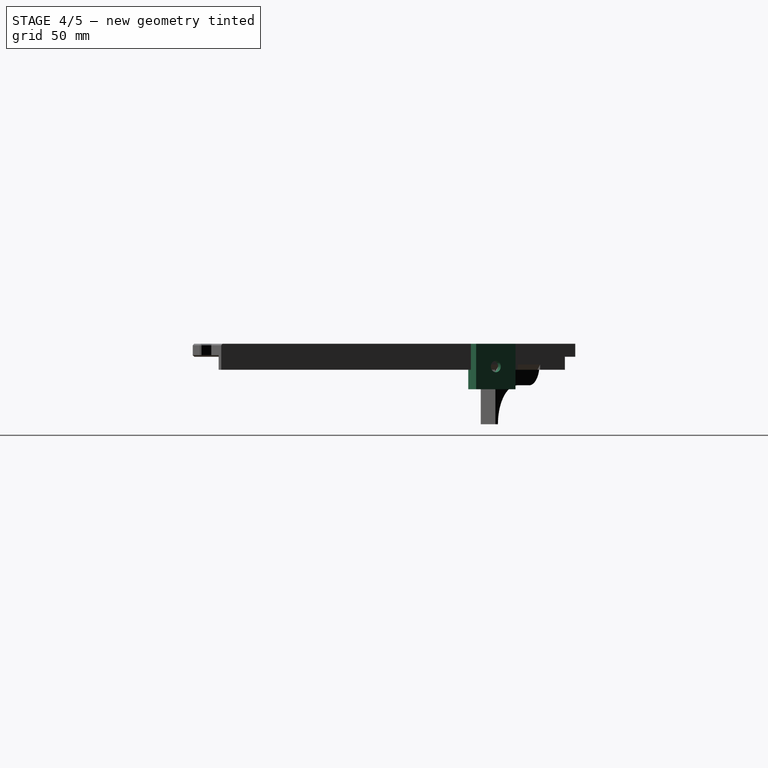
[diagram: stage 4 of 5 — right view after this stage's code; geometry added in this stage tinted green]
FEATURE [PartDesign::ShapeBinder] ShapeBinder001
  Support = -> [Sketch]
  TraceSupport = false
FEATURE [Sketcher::SketchObject] Sketch003  label="SRTFFR_CableCut"
  ExternalGeometry = -> [ShapeBinder001]
  FullyConstrained = true
  MapMode = 5
  Support = -> [XY_Plane003]
  sketch-geometry (6):
    g0: LineSegment StartX=51.3708 StartY=167.991 StartZ=0 EndX=57.3464 EndY=171.441 EndZ=0
    g1: LineSegment StartX=46.3464 StartY=190.494 StartZ=0 EndX=48.0785 EndY=191.494 EndZ=0
    g2: LineSegment StartX=48.0785 StartY=191.494 StartZ=0 EndX=53.0785 EndY=182.833 EndZ=0
    g3: LineSegment StartX=53.0785 StartY=182.833 StartZ=0 EndX=51.3464 EndY=181.833 EndZ=0
    g4: LineSegment StartX=51.3464 StartY=181.833 StartZ=0 EndX=46.3464 EndY=190.494 EndZ=0
    g5: GeomPoint X=48.8464 Y=186.163 Z=0
  constraints (16):
    c: Coincident(g0,g-5)
    c: PointOnObject(g0,g-3)
    c: Perpendicular(g-3,g0)
    c: PointOnObject(g1,g-3)
    c: PointOnObject(g1,g-4)
    c: Coincident(g1,g2)
    c: PointOnObject(g2,g-4)
    c: Coincident(g2,g3)
    c: PointOnObject(g3,g-3)
    c: Coincident(g3,g4)
    c: Coincident(g4,g1)
    c: Perpendicular(g-3,g3)
    c: Perpendicular(g-3,g1)
    c: Symmetric(g1,g3,g5)
    c: Distance(g0,g5) = 17
    c: Distance(g2) = 10
FEATURE [PartDesign::Pocket] Pocket  label="SRTFFR_CableCut_"
  BaseFeature = -> Clone
  Length = 5
  Length2 = 100
  Profile = -> Sketch003
  Type = 1
FEATURE [PartDesign::Body] Body003  label="SR_TopFrame_FL"
  BaseFeature = -> Chamfer001
  Group = -> [Clone001,ShapeBinder002,DatumPlane,Sketch005,Pad002,Chamfer003,Chamfer004,Fillet,Sketch004,Pocket001]
  Origin = -> Origin004
  Tip = -> Pocket001
FEATURE [PartDesign::Plane] DatumPlane001
  AttachmentOffset = pos=(0,0,0) rot=(0,1,0;1.5708rad)
  Length = 343.352
  MapMode = 7
  Placement = pos=(40.8464,200.02,0) rot=(-0.774597,0.447214,0.447214;4.45971rad)
  ResizeMode = 0
  Support = -> [ShapeBinder001]
  Width = 75.2241
FEATURE [Sketcher::SketchObject] Sketch006  label="SRTFFR_DisplayHolderBase"
  ExternalGeometry = -> [ShapeBinder001]
  FullyConstrained = true
  MapMode = 5
  Placement = pos=(40.8464,200.02,0) rot=(0.377964,0.654654,0.654654;2.41886rad)
  Support = -> [DatumPlane001]
  expr: Constraints[13] = <<SRTF_Base_>>.Length
  sketch-geometry (8):
    g0: Circle CenterX=-33 CenterY=-3.76 CenterZ=0 NormalX=0 NormalY=0 NormalZ=1 AngleXU=0 Radius=3.75
    g1: LineSegment StartX=-33 StartY=-0.01 StartZ=0 EndX=-33 EndY=-3.76 EndZ=0
    g2: LineSegment StartX=-41.76 StartY=5 StartZ=0 EndX=-24.24 EndY=5 EndZ=0
    g3: LineSegment StartX=-24.24 StartY=5 StartZ=0 EndX=-24.24 EndY=-12.52 EndZ=0
    g4: LineSegment StartX=-24.24 StartY=-12.52 StartZ=0 EndX=-41.76 EndY=-12.52 EndZ=0
    g5: LineSegment StartX=-41.76 StartY=-12.52 StartZ=0 EndX=-41.76 EndY=5 EndZ=0
    g6: Circle CenterX=-33 CenterY=-3.76 CenterZ=0 NormalX=0 NormalY=0 NormalZ=1 AngleXU=0 Radius=2.2
    g7: GeomPoint X=-33 Y=0 Z=0
  constraints (20):
    c: Coincident(g1,g0)
    c: Vertical(g1)
    c: Radius(g0) = 3.75  'Rhead'
    c: Coincident(g2,g3)
    c: Coincident(g3,g4)
    c: Coincident(g4,g5)
    c: Coincident(g5,g2)
    c: Horizontal(g2)
    c: Horizontal(g4)
    c: Vertical(g3)
    c: Vertical(g5)
    c: Equal(g4,g3)
    c: Symmetric(g3,g2,g0)
    c: DistanceY(g-3,g2) = 5
    c: Coincident(g6,g0)
    c: Radius(g6) = 2.2
    c: PointOnObject(g1,g0)
    c: Symmetric(g-3,g-3,g7)
    c: PointOnObject(g7,g1)
    c: DistanceY(g1,g7) = 0.01
FEATURE [PartDesign::Pad] Pad003  label="SRTFFR_DisplayHolderBase_"
  BaseFeature = -> Pocket
  Direction = (1,1,1)
  Length = 6
  Length2 = 100
  Profile = -> Sketch006
  Type = 0
FEATURE [Sketcher::SketchObject] Sketch007  label="SRTFFR_DisplayHolderScrewHead"
  AttachmentOffset = pos=(0,0,-4) rot=(0,0,1;0rad)
  ExternalGeometry = -> [Sketch006,ShapeBinder001]
  FullyConstrained = true
  MapMode = 5
  Placement = pos=(44.3105,202.02,0) rot=(0.774597,-0.447214,-0.447214;1.82348rad)
  Support = -> [DatumPlane001]
  expr: Constraints[1] = <<SRTFFR_DisplayHolderBase>>.Constraints.Rhead
  sketch-geometry (1):
    g0: Circle CenterX=33 CenterY=-3.76 CenterZ=0 NormalX=0 NormalY=0 NormalZ=1 AngleXU=0 Radius=3.75
  constraints (2):
    c: Coincident(g0,g-3)
    c: Radius(g0) = 3.75
FEATURE [PartDesign::Pocket] Pocket002  label="SRTFFR_DisplayHolderScrewHead_"
  BaseFeature = -> Pad003
  Length = 4
  Length2 = 100
  Profile = -> Sketch007
  Refine = true
  Reversed = true
  Type = 0
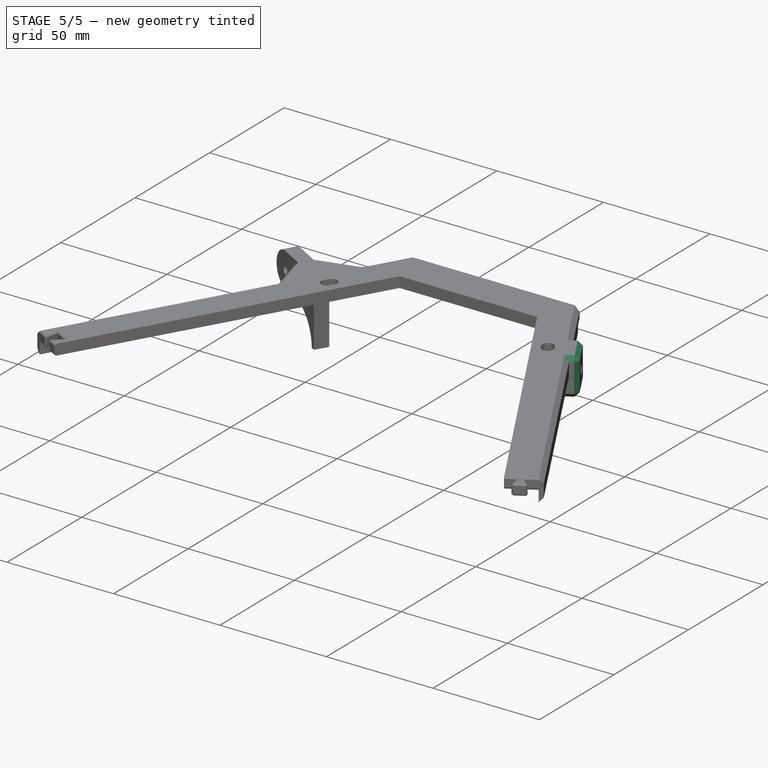
[diagram: stage 5 of 5 — iso view after this stage's code; geometry added in this stage tinted green]
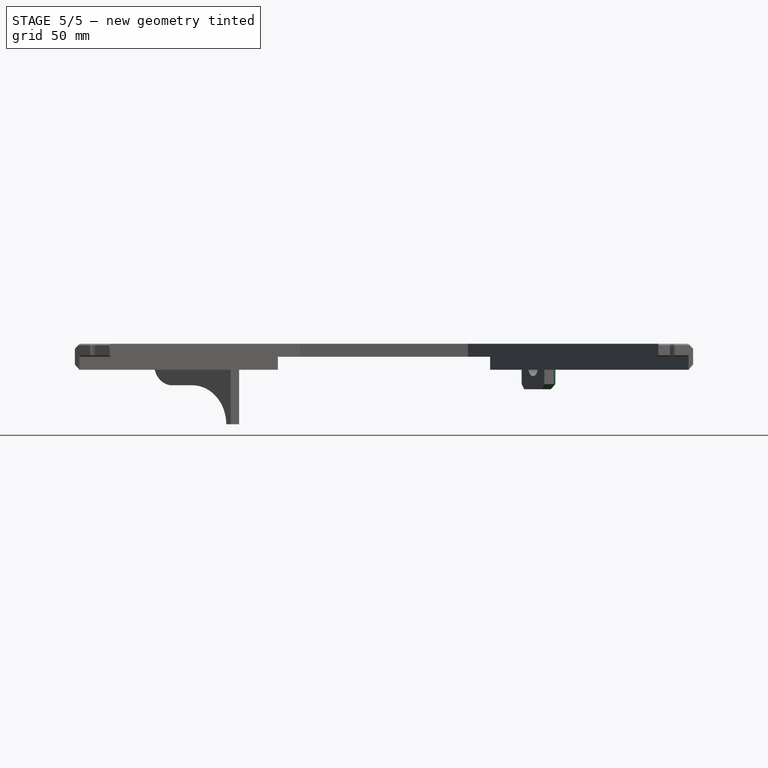
[diagram: stage 5 of 5 — front view after this stage's code; geometry added in this stage tinted green]
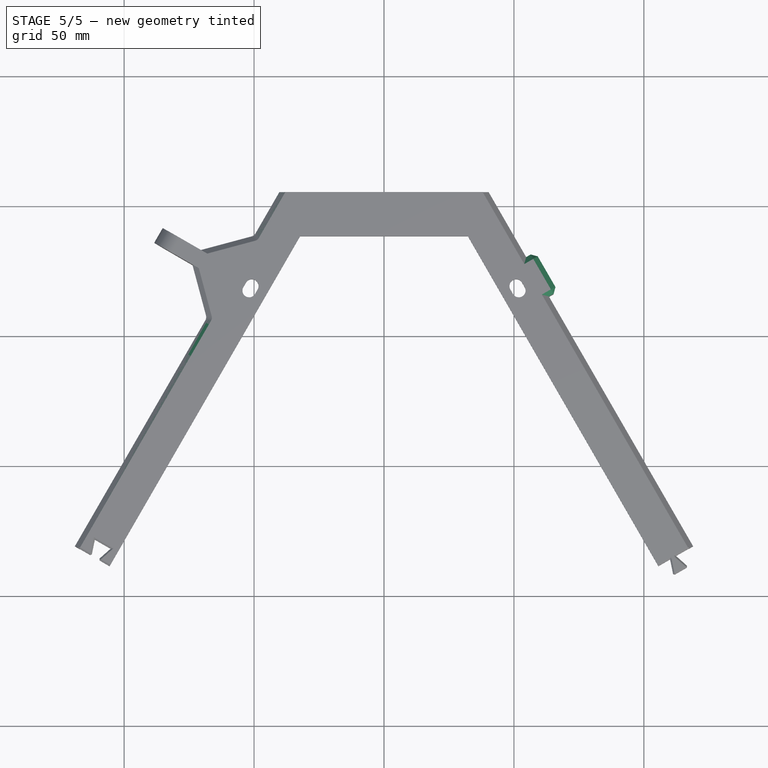
[diagram: stage 5 of 5 — top view after this stage's code; geometry added in this stage tinted green]
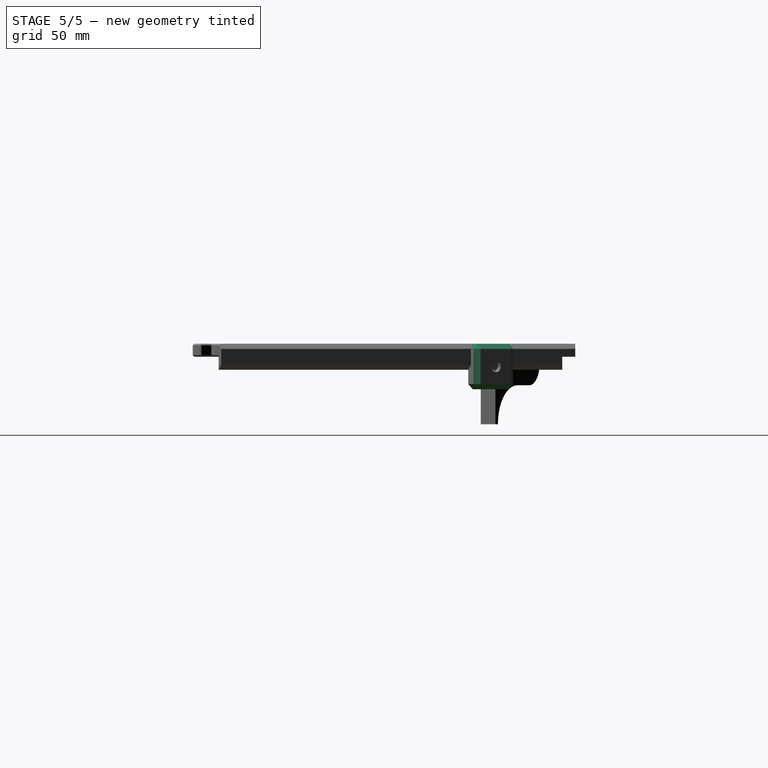
[diagram: stage 5 of 5 — right view after this stage's code; geometry added in this stage tinted green]
FEATURE [PartDesign::Chamfer] Chamfer  label="SRTF_FlangeChamfer"
  Angle = 45
  Base = -> Chamfer001 [Edge47,Edge43,Edge38,Edge54,Edge57,Edge58]
  BaseFeature = -> Chamfer001
  ChamferType = 0
  FlipDirection = false
  Size = 1.99
  Size2 = 1
  SupportTransform = false
FEATURE [PartDesign::Chamfer] Chamfer005
  Angle = 45
  Base = -> Pocket002 [Edge48,Edge45,Edge53,Edge58,Edge60,Edge65,Edge59,Edge63,Edge102,Edge175,Edge173,Edge177,Edge176,Edge179,Edge104,Edge62,Edge137,Edge103,Edge171]
  BaseFeature = -> Pocket002
  ChamferType = 0
  FlipDirection = false
  Size = 1.99
  Size2 = 1
  SupportTransform = false
FEATURE [PartDesign::Body] Body002  label="SR_TopFrame_FR"
  BaseFeature = -> Chamfer001
  Group = -> [Clone,ShapeBinder001,Sketch003,Pocket,DatumPlane001,Sketch006,Pad003,Sketch007,Pocket002,Chamfer005]
  Origin = -> Origin003
  Tip = -> Chamfer005
FEATURE [App::Part] Part  label="SR_TopFrame"
  Group = -> [Body,Body001,Body002,Body003]
  Origin = -> Origin
FEATURE [PartDesign::FeatureBase] Clone002
  BaseFeature = -> Body001
FEATURE [PartDesign::Body] Body004  label="SR_TopFrame_B_Print"
  Group = -> [Clone002]
  Origin = -> Origin006
  Placement = pos=(0,0,0) rot=(0,1,0;3.14159rad)
  Tip = -> Clone002
FEATURE [PartDesign::FeatureBase] Clone003
  BaseFeature = -> Body002
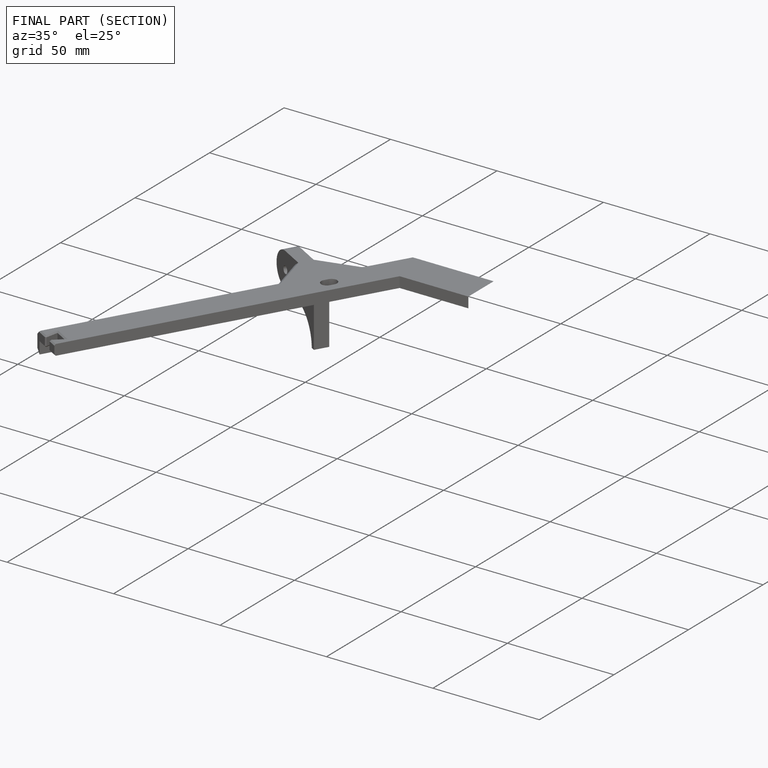
[diagram: finished part — half-section view (interior)]
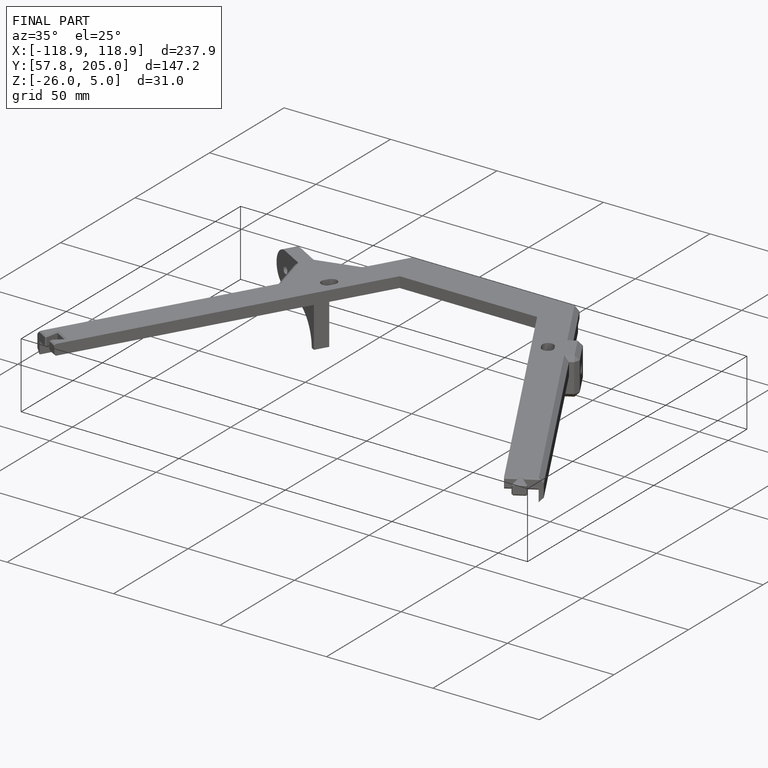
[diagram: finished part — iso view with bounding-box wireframe]
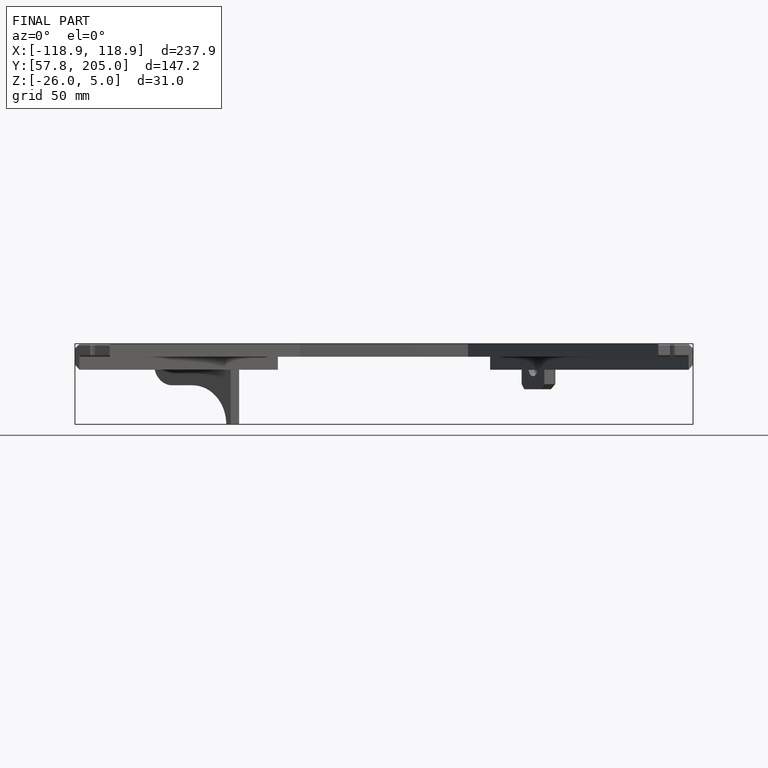
[diagram: finished part — front view with bounding-box wireframe]
